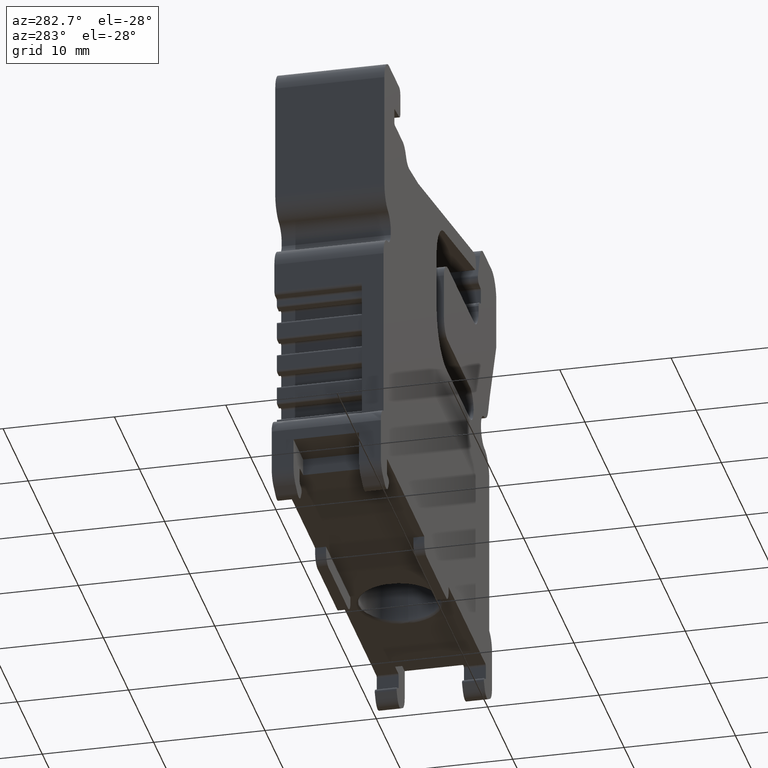
[diagram: clean part render]
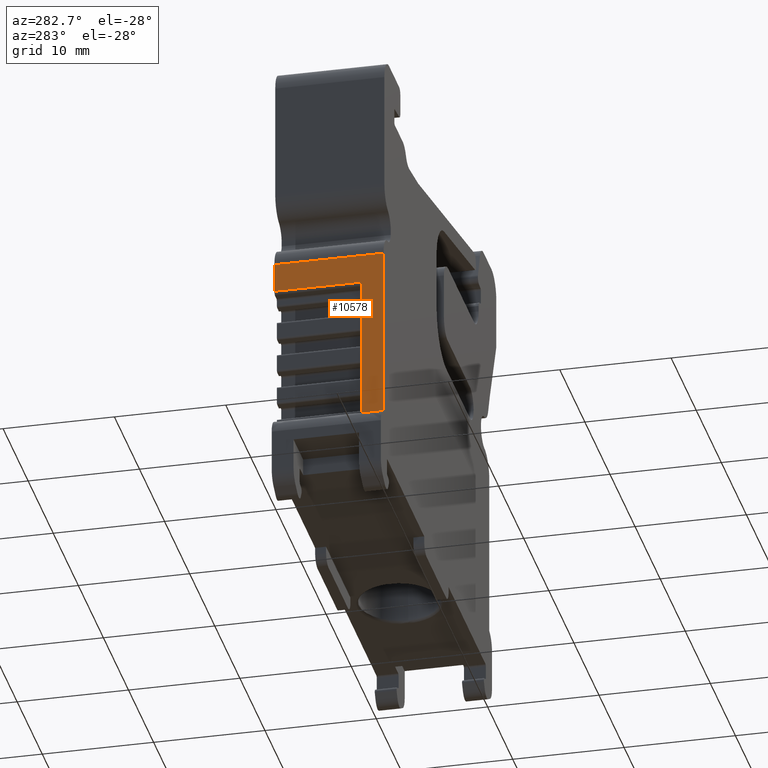
[diagram: same view with one face highlighted and labeled with its STEP entity id]
A machine part, auxiliary view. The second image highlights one B-rep face of the part: STEP entity #10578.
In plain terms, the highlighted planar face has unit normal (-1, 0, -0).
Its self-contained STEP definition (entity closure, byte-faithful):
#618 = LINE ( 'NONE', #619, #3290 ) ;
#619 = CARTESIAN_POINT ( 'NONE',  ( -21.06095516263416200, -9.901244391999814100, 31.59857051678419300 ) ) ;
#621 = DIRECTION ( 'NONE',  ( 0.0000000000000000000, -0.0000000000000000000, 1.000000000000000000 ) ) ;
#1511 = LINE ( 'NONE', #1513, #3411 ) ;
#1513 = CARTESIAN_POINT ( 'NONE',  ( -21.06095516263249900, -0.1012443920222223100, 16.08886907158867500 ) ) ;
#1514 = DIRECTION ( 'NONE',  ( 5.851792375774077300E-013, -0.0000000000000000000, -1.000000000000000000 ) ) ;
#3290 = VECTOR ( 'NONE', #621, 1000.000000000000000 ) ;
#3411 = VECTOR ( 'NONE', #1514, 1000.000000000000000 ) ;
#4414 = ORIENTED_EDGE ( 'NONE', *, *, #11734, .T. ) ;
#4462 = EDGE_LOOP ( 'NONE', ( #4487, #4512, #4497, #4414, #4510, #4513 ) ) ;
#4487 = ORIENTED_EDGE ( 'NONE', *, *, #11201, .T. ) ;
#4497 = ORIENTED_EDGE ( 'NONE', *, *, #10475, .T. ) ;
#4510 = ORIENTED_EDGE ( 'NONE', *, *, #10457, .F. ) ;
#4512 = ORIENTED_EDGE ( 'NONE', *, *, #11175, .T. ) ;
#4513 = ORIENTED_EDGE ( 'NONE', *, *, #11449, .T. ) ;
#4660 = CARTESIAN_POINT ( 'NONE',  ( -21.06095516263249900, -7.941244392004303900, 16.08886907158867500 ) ) ;
#4676 = LINE ( 'NONE', #4660, #8748 ) ;
#4678 = DIRECTION ( 'NONE',  ( 5.851792375774077300E-013, -0.0000000000000000000, -1.000000000000000000 ) ) ;
#4804 = CARTESIAN_POINT ( 'NONE',  ( -21.06095516263268100, -9.901244391999814100, 16.39918754292316500 ) ) ;
#4813 = DIRECTION ( 'NONE',  ( -0.0000000000000000000, -1.000000000000000000, -0.0000000000000000000 ) ) ;
#4829 = LINE ( 'NONE', #4804, #8764 ) ;
#6066 = VERTEX_POINT ( 'NONE', #9581 ) ;
#6084 = VERTEX_POINT ( 'NONE', #9587 ) ;
#6376 = VERTEX_POINT ( 'NONE', #9897 ) ;
#6416 = VERTEX_POINT ( 'NONE', #9930 ) ;
#6618 = VERTEX_POINT ( 'NONE', #10095 ) ;
#6626 = VERTEX_POINT ( 'NONE', #10089 ) ;
#8562 = VECTOR ( 'NONE', #12305, 1000.000000000000000 ) ;
#8597 = VECTOR ( 'NONE', #10691, 1000.000000000000000 ) ;
#8669 = AXIS2_PLACEMENT_3D ( 'NONE', #11052, #11047, #11033 ) ;
#8748 = VECTOR ( 'NONE', #4678, 1000.000000000000000 ) ;
#8764 = VECTOR ( 'NONE', #4813, 1000.000000000000000 ) ;
#9581 = CARTESIAN_POINT ( 'NONE',  ( -21.06095516262962500, -9.901244391999814100, 3.413066246662727700 ) ) ;
#9587 = CARTESIAN_POINT ( 'NONE',  ( -21.06095516263419800, -9.901244391999814100, 19.02918957747570200 ) ) ;
#9897 = CARTESIAN_POINT ( 'NONE',  ( -21.06095516262762500, -7.941244392004303900, 3.413066246663664800 ) ) ;
#9930 = CARTESIAN_POINT ( 'NONE',  ( -21.06095516263268400, -7.941244392004303900, 16.39918754292325100 ) ) ;
#10089 = CARTESIAN_POINT ( 'NONE',  ( -21.06095516263421900, -0.1012443920222224500, 19.02918957747570200 ) ) ;
#10095 = CARTESIAN_POINT ( 'NONE',  ( -21.06095516263268400, -0.1012443920222198400, 16.39918754292323300 ) ) ;
#10457 = EDGE_CURVE ( 'NONE', #6626, #6084, #12333, .T. ) ;
#10475 = EDGE_CURVE ( 'NONE', #6376, #6066, #10694, .T. ) ;
#10578 = ADVANCED_FACE ( 'NONE', ( #11046 ), #11039, .T. ) ;
#10676 = CARTESIAN_POINT ( 'NONE',  ( -21.06095516262508100, -9.901244391999814100, 3.413066246662727700 ) ) ;
#10691 = DIRECTION ( 'NONE',  ( -0.0000000000000000000, -1.000000000000000000, -0.0000000000000000000 ) ) ;
#10694 = LINE ( 'NONE', #10676, #8597 ) ;
#11033 = DIRECTION ( 'NONE',  ( -5.851792375774077300E-013, 0.0000000000000000000, 1.000000000000000000 ) ) ;
#11039 = PLANE ( 'NONE',  #8669 ) ;
#11046 = FACE_OUTER_BOUND ( 'NONE', #4462, .T. ) ;
#11047 = DIRECTION ( 'NONE',  ( -1.000000000000000000, 0.0000000000000000000, -5.851792375774077300E-013 ) ) ;
#11052 = CARTESIAN_POINT ( 'NONE',  ( -21.06095516263249900, -9.901244391999814100, 16.08886907158867500 ) ) ;
#11175 = EDGE_CURVE ( 'NONE', #6416, #6376, #4676, .T. ) ;
#11201 = EDGE_CURVE ( 'NONE', #6618, #6416, #4829, .T. ) ;
#11449 = EDGE_CURVE ( 'NONE', #6626, #6618, #1511, .T. ) ;
#11734 = EDGE_CURVE ( 'NONE', #6066, #6084, #618, .T. ) ;
#12305 = DIRECTION ( 'NONE',  ( -0.0000000000000000000, -1.000000000000000000, -0.0000000000000000000 ) ) ;
#12318 = CARTESIAN_POINT ( 'NONE',  ( -21.06095516263421200, -5.001244392011018100, 19.02918957747570200 ) ) ;
#12333 = LINE ( 'NONE', #12318, #8562 ) ;